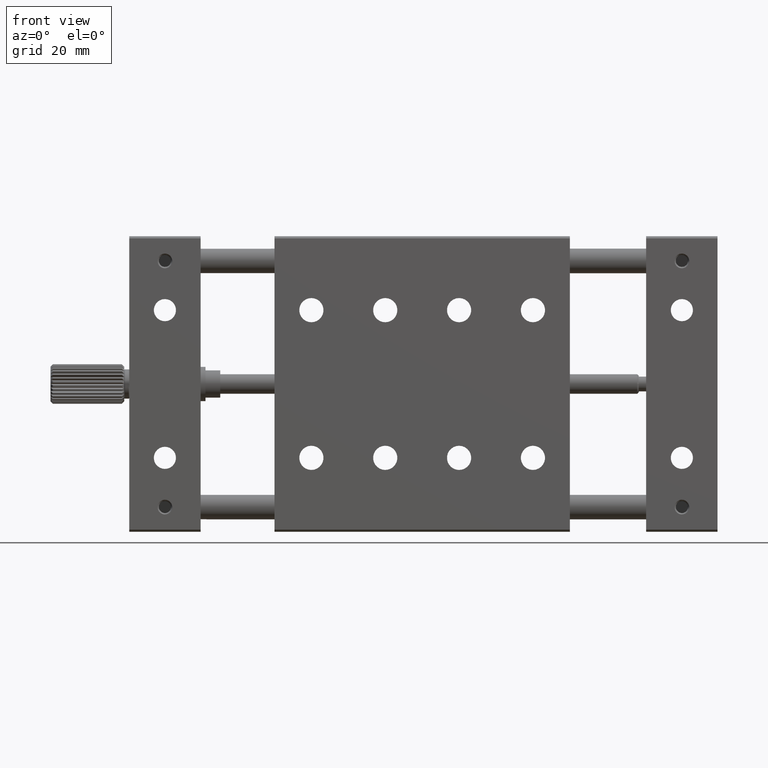
[diagram: clean part render]
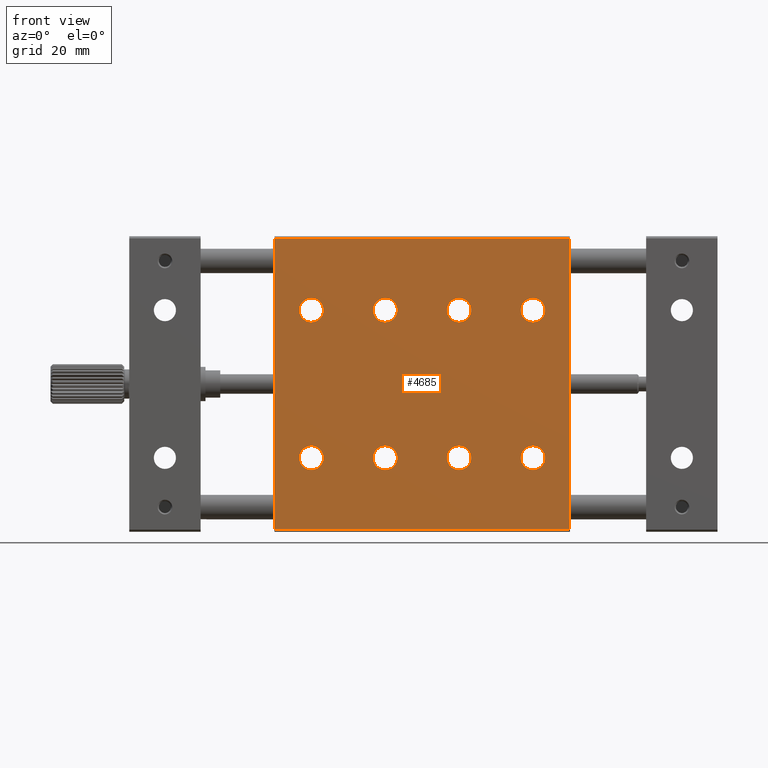
[diagram: same view with one face highlighted and labeled with its STEP entity id]
A machine part, front view. The second image highlights one B-rep face of the part: STEP entity #4685.
In plain terms, the highlighted planar face has unit normal (0, 1, 0).
Its self-contained STEP definition (entity closure, byte-faithful):
#100 = EDGE_LOOP ( 'NONE', ( #697 ) ) ;
#110 = CARTESIAN_POINT ( 'NONE',  ( 82.00000000000000000, 0.5000000000000000000, -17.45849999999999724 ) ) ;
#233 = EDGE_LOOP ( 'NONE', ( #4318 ) ) ;
#246 = VECTOR ( 'NONE', #496, 1000.000000000000000 ) ;
#279 = CARTESIAN_POINT ( 'NONE',  ( 52.00000000000000711, 0.5000000000000000000, -17.45849999999999724 ) ) ;
#318 = VERTEX_POINT ( 'NONE', #279 ) ;
#496 = DIRECTION ( 'NONE',  ( -0.000000000000000000, 0.000000000000000000, -1.000000000000000000 ) ) ;
#551 = CARTESIAN_POINT ( 'NONE',  ( 82.00000000000000000, 0.5000000000000000000, -47.45850000000000080 ) ) ;
#572 = CIRCLE ( 'NONE', #3538, 2.458499999999999019 ) ;
#589 = CARTESIAN_POINT ( 'NONE',  ( 89.50000000000000000, 0.5000000000000000000, -0.4099999999999999756 ) ) ;
#605 = DIRECTION ( 'NONE',  ( -1.000000000000000000, -0.000000000000000000, 0.000000000000000000 ) ) ;
#650 = AXIS2_PLACEMENT_3D ( 'NONE', #791, #2950, #2829 ) ;
#697 = ORIENTED_EDGE ( 'NONE', *, *, #7917, .F. ) ;
#714 = AXIS2_PLACEMENT_3D ( 'NONE', #1257, #5975, #6648 ) ;
#769 = FACE_BOUND ( 'NONE', #5246, .T. ) ;
#791 = CARTESIAN_POINT ( 'NONE',  ( 52.00000000000000711, 0.5000000000000000000, -45.00000000000000000 ) ) ;
#891 = EDGE_LOOP ( 'NONE', ( #3606 ) ) ;
#1011 = DIRECTION ( 'NONE',  ( 0.000000000000000000, 0.000000000000000000, -1.000000000000000000 ) ) ;
#1036 = ORIENTED_EDGE ( 'NONE', *, *, #4024, .F. ) ;
#1119 = CARTESIAN_POINT ( 'NONE',  ( 67.00000000000000000, 0.5000000000000000000, -17.45849999999999724 ) ) ;
#1257 = CARTESIAN_POINT ( 'NONE',  ( 67.00000000000000000, 0.5000000000000000000, -15.00000000000000000 ) ) ;
#1393 = AXIS2_PLACEMENT_3D ( 'NONE', #8199, #3995, #6216 ) ;
#1448 = VERTEX_POINT ( 'NONE', #6828 ) ;
#1481 = CARTESIAN_POINT ( 'NONE',  ( 89.50000000000000000, 0.5000000000000000000, -0.4099999999999999756 ) ) ;
#1506 = AXIS2_PLACEMENT_3D ( 'NONE', #4535, #7759, #1011 ) ;
#1526 = FACE_BOUND ( 'NONE', #233, .T. ) ;
#1580 = ORIENTED_EDGE ( 'NONE', *, *, #1996, .F. ) ;
#1655 = CARTESIAN_POINT ( 'NONE',  ( 37.00000000000000711, 0.5000000000000000000, -17.45849999999999724 ) ) ;
#1702 = VERTEX_POINT ( 'NONE', #1119 ) ;
#1847 = CIRCLE ( 'NONE', #8612, 2.458499999999999019 ) ;
#1959 = VECTOR ( 'NONE', #5225, 1000.000000000000000 ) ;
#1966 = LINE ( 'NONE', #589, #1959 ) ;
#1996 = EDGE_CURVE ( 'NONE', #2674, #2674, #4446, .T. ) ;
#2077 = CARTESIAN_POINT ( 'NONE',  ( 29.50000000000000355, 0.4999999999999997780, -0.4099999999999998646 ) ) ;
#2109 = EDGE_CURVE ( 'NONE', #7224, #7224, #5296, .T. ) ;
#2144 = FACE_BOUND ( 'NONE', #6723, .T. ) ;
#2240 = CIRCLE ( 'NONE', #1393, 2.458500000000002572 ) ;
#2250 = DIRECTION ( 'NONE',  ( 0.000000000000000000, 0.000000000000000000, -1.000000000000000000 ) ) ;
#2316 = DIRECTION ( 'NONE',  ( 0.000000000000000000, 0.000000000000000000, -1.000000000000000000 ) ) ;
#2407 = CIRCLE ( 'NONE', #714, 2.458499999999999019 ) ;
#2585 = CARTESIAN_POINT ( 'NONE',  ( 52.00000000000000711, 0.5000000000000000000, -47.45850000000000080 ) ) ;
#2610 = ORIENTED_EDGE ( 'NONE', *, *, #3217, .F. ) ;
#2667 = FACE_OUTER_BOUND ( 'NONE', #7376, .T. ) ;
#2674 = VERTEX_POINT ( 'NONE', #2585 ) ;
#2696 = DIRECTION ( 'NONE',  ( 0.000000000000000000, -1.000000000000000000, 0.000000000000000000 ) ) ;
#2702 = VECTOR ( 'NONE', #605, 1000.000000000000000 ) ;
#2802 = PLANE ( 'NONE',  #4218 ) ;
#2829 = DIRECTION ( 'NONE',  ( 0.000000000000000000, 0.000000000000000000, -1.000000000000000000 ) ) ;
#2877 = VERTEX_POINT ( 'NONE', #6946 ) ;
#2880 = DIRECTION ( 'NONE',  ( 0.000000000000000000, -1.000000000000000000, 0.000000000000000000 ) ) ;
#2896 = CARTESIAN_POINT ( 'NONE',  ( 89.50000000000000000, 0.4999999999999997780, -0.4099999999999998646 ) ) ;
#2932 = EDGE_LOOP ( 'NONE', ( #4699 ) ) ;
#2950 = DIRECTION ( 'NONE',  ( 0.000000000000000000, -1.000000000000000000, 0.000000000000000000 ) ) ;
#2971 = CARTESIAN_POINT ( 'NONE',  ( 29.50000000000000355, 0.5000000000000013323, -59.59000000000000341 ) ) ;
#3174 = EDGE_CURVE ( 'NONE', #8686, #8686, #7853, .T. ) ;
#3217 = EDGE_CURVE ( 'NONE', #7448, #5418, #8252, .T. ) ;
#3460 = FACE_BOUND ( 'NONE', #2932, .T. ) ;
#3501 = DIRECTION ( 'NONE',  ( 0.000000000000000000, 1.000000000000000000, 0.000000000000000000 ) ) ;
#3518 = CARTESIAN_POINT ( 'NONE',  ( 89.50000000000000000, 0.5000000000000000000, -0.4099999999999999756 ) ) ;
#3538 = AXIS2_PLACEMENT_3D ( 'NONE', #7152, #5739, #6582 ) ;
#3586 = DIRECTION ( 'NONE',  ( 0.000000000000000000, -1.000000000000000000, 0.000000000000000000 ) ) ;
#3606 = ORIENTED_EDGE ( 'NONE', *, *, #2109, .F. ) ;
#3678 = VERTEX_POINT ( 'NONE', #2896 ) ;
#3745 = EDGE_CURVE ( 'NONE', #3678, #2877, #7538, .T. ) ;
#3995 = DIRECTION ( 'NONE',  ( 0.000000000000000000, -1.000000000000000000, 0.000000000000000000 ) ) ;
#4024 = EDGE_CURVE ( 'NONE', #7493, #7493, #4622, .T. ) ;
#4029 = FACE_BOUND ( 'NONE', #4297, .T. ) ;
#4125 = FACE_BOUND ( 'NONE', #891, .T. ) ;
#4218 = AXIS2_PLACEMENT_3D ( 'NONE', #1481, #3501, #6732 ) ;
#4297 = EDGE_LOOP ( 'NONE', ( #1036 ) ) ;
#4318 = ORIENTED_EDGE ( 'NONE', *, *, #7446, .F. ) ;
#4446 = CIRCLE ( 'NONE', #650, 2.458500000000002572 ) ;
#4528 = EDGE_CURVE ( 'NONE', #5418, #3678, #1966, .T. ) ;
#4535 = CARTESIAN_POINT ( 'NONE',  ( 67.00000000000000000, 0.5000000000000000000, -45.00000000000000000 ) ) ;
#4622 = CIRCLE ( 'NONE', #8012, 2.458499999999999019 ) ;
#4685 = ADVANCED_FACE ( 'NONE', ( #2667, #1526, #5401, #769, #4029, #2144, #4125, #4693, #3460 ), #2802, .F. ) ;
#4693 = FACE_BOUND ( 'NONE', #5152, .T. ) ;
#4699 = ORIENTED_EDGE ( 'NONE', *, *, #5715, .F. ) ;
#4890 = VECTOR ( 'NONE', #6969, 1000.000000000000000 ) ;
#5135 = ORIENTED_EDGE ( 'NONE', *, *, #8501, .F. ) ;
#5152 = EDGE_LOOP ( 'NONE', ( #1580 ) ) ;
#5225 = DIRECTION ( 'NONE',  ( 1.000000000000000000, 0.000000000000000000, -0.000000000000000000 ) ) ;
#5246 = EDGE_LOOP ( 'NONE', ( #6869 ) ) ;
#5296 = CIRCLE ( 'NONE', #1506, 2.458500000000002572 ) ;
#5401 = FACE_BOUND ( 'NONE', #100, .T. ) ;
#5418 = VERTEX_POINT ( 'NONE', #2077 ) ;
#5573 = DIRECTION ( 'NONE',  ( 0.000000000000000000, 0.000000000000000000, -1.000000000000000000 ) ) ;
#5673 = VERTEX_POINT ( 'NONE', #1655 ) ;
#5715 = EDGE_CURVE ( 'NONE', #1448, #1448, #2240, .T. ) ;
#5739 = DIRECTION ( 'NONE',  ( 0.000000000000000000, -1.000000000000000000, 0.000000000000000000 ) ) ;
#5911 = LINE ( 'NONE', #6665, #2702 ) ;
#5975 = DIRECTION ( 'NONE',  ( 0.000000000000000000, -1.000000000000000000, 0.000000000000000000 ) ) ;
#6118 = ORIENTED_EDGE ( 'NONE', *, *, #4528, .F. ) ;
#6175 = AXIS2_PLACEMENT_3D ( 'NONE', #8758, #2696, #2250 ) ;
#6216 = DIRECTION ( 'NONE',  ( 0.000000000000000000, 0.000000000000000000, -1.000000000000000000 ) ) ;
#6563 = CARTESIAN_POINT ( 'NONE',  ( 67.00000000000000000, 0.5000000000000000000, -47.45850000000000080 ) ) ;
#6582 = DIRECTION ( 'NONE',  ( 0.000000000000000000, 0.000000000000000000, -1.000000000000000000 ) ) ;
#6648 = DIRECTION ( 'NONE',  ( 0.000000000000000000, 0.000000000000000000, -1.000000000000000000 ) ) ;
#6665 = CARTESIAN_POINT ( 'NONE',  ( 89.50000000000000000, 0.5000000000000000000, -59.59000000000000341 ) ) ;
#6723 = EDGE_LOOP ( 'NONE', ( #8207 ) ) ;
#6732 = DIRECTION ( 'NONE',  ( 0.000000000000000000, -0.000000000000000000, 1.000000000000000000 ) ) ;
#6828 = CARTESIAN_POINT ( 'NONE',  ( 37.00000000000000711, 0.5000000000000000000, -47.45850000000000080 ) ) ;
#6869 = ORIENTED_EDGE ( 'NONE', *, *, #7234, .F. ) ;
#6910 = CARTESIAN_POINT ( 'NONE',  ( 82.00000000000000000, 0.5000000000000000000, -15.00000000000000000 ) ) ;
#6946 = CARTESIAN_POINT ( 'NONE',  ( 89.50000000000000000, 0.5000000000000026645, -59.59000000000001052 ) ) ;
#6969 = DIRECTION ( 'NONE',  ( 0.000000000000000000, -0.000000000000000000, 1.000000000000000000 ) ) ;
#7030 = CARTESIAN_POINT ( 'NONE',  ( 37.00000000000000711, 0.5000000000000000000, -15.00000000000000000 ) ) ;
#7059 = CARTESIAN_POINT ( 'NONE',  ( 29.50000000000000355, 0.5000000000000000000, -0.4099999999999999756 ) ) ;
#7152 = CARTESIAN_POINT ( 'NONE',  ( 52.00000000000000711, 0.5000000000000000000, -15.00000000000000000 ) ) ;
#7224 = VERTEX_POINT ( 'NONE', #6563 ) ;
#7234 = EDGE_CURVE ( 'NONE', #1702, #1702, #2407, .T. ) ;
#7376 = EDGE_LOOP ( 'NONE', ( #5135, #7814, #6118, #2610 ) ) ;
#7446 = EDGE_CURVE ( 'NONE', #5673, #5673, #1847, .T. ) ;
#7448 = VERTEX_POINT ( 'NONE', #2971 ) ;
#7493 = VERTEX_POINT ( 'NONE', #110 ) ;
#7538 = LINE ( 'NONE', #3518, #246 ) ;
#7759 = DIRECTION ( 'NONE',  ( 0.000000000000000000, -1.000000000000000000, 0.000000000000000000 ) ) ;
#7814 = ORIENTED_EDGE ( 'NONE', *, *, #3745, .F. ) ;
#7853 = CIRCLE ( 'NONE', #6175, 2.458500000000002572 ) ;
#7917 = EDGE_CURVE ( 'NONE', #318, #318, #572, .T. ) ;
#8012 = AXIS2_PLACEMENT_3D ( 'NONE', #6910, #3586, #2316 ) ;
#8199 = CARTESIAN_POINT ( 'NONE',  ( 37.00000000000000711, 0.5000000000000000000, -45.00000000000000000 ) ) ;
#8207 = ORIENTED_EDGE ( 'NONE', *, *, #3174, .F. ) ;
#8252 = LINE ( 'NONE', #7059, #4890 ) ;
#8501 = EDGE_CURVE ( 'NONE', #2877, #7448, #5911, .T. ) ;
#8612 = AXIS2_PLACEMENT_3D ( 'NONE', #7030, #2880, #5573 ) ;
#8686 = VERTEX_POINT ( 'NONE', #551 ) ;
#8758 = CARTESIAN_POINT ( 'NONE',  ( 82.00000000000000000, 0.5000000000000000000, -45.00000000000000000 ) ) ;